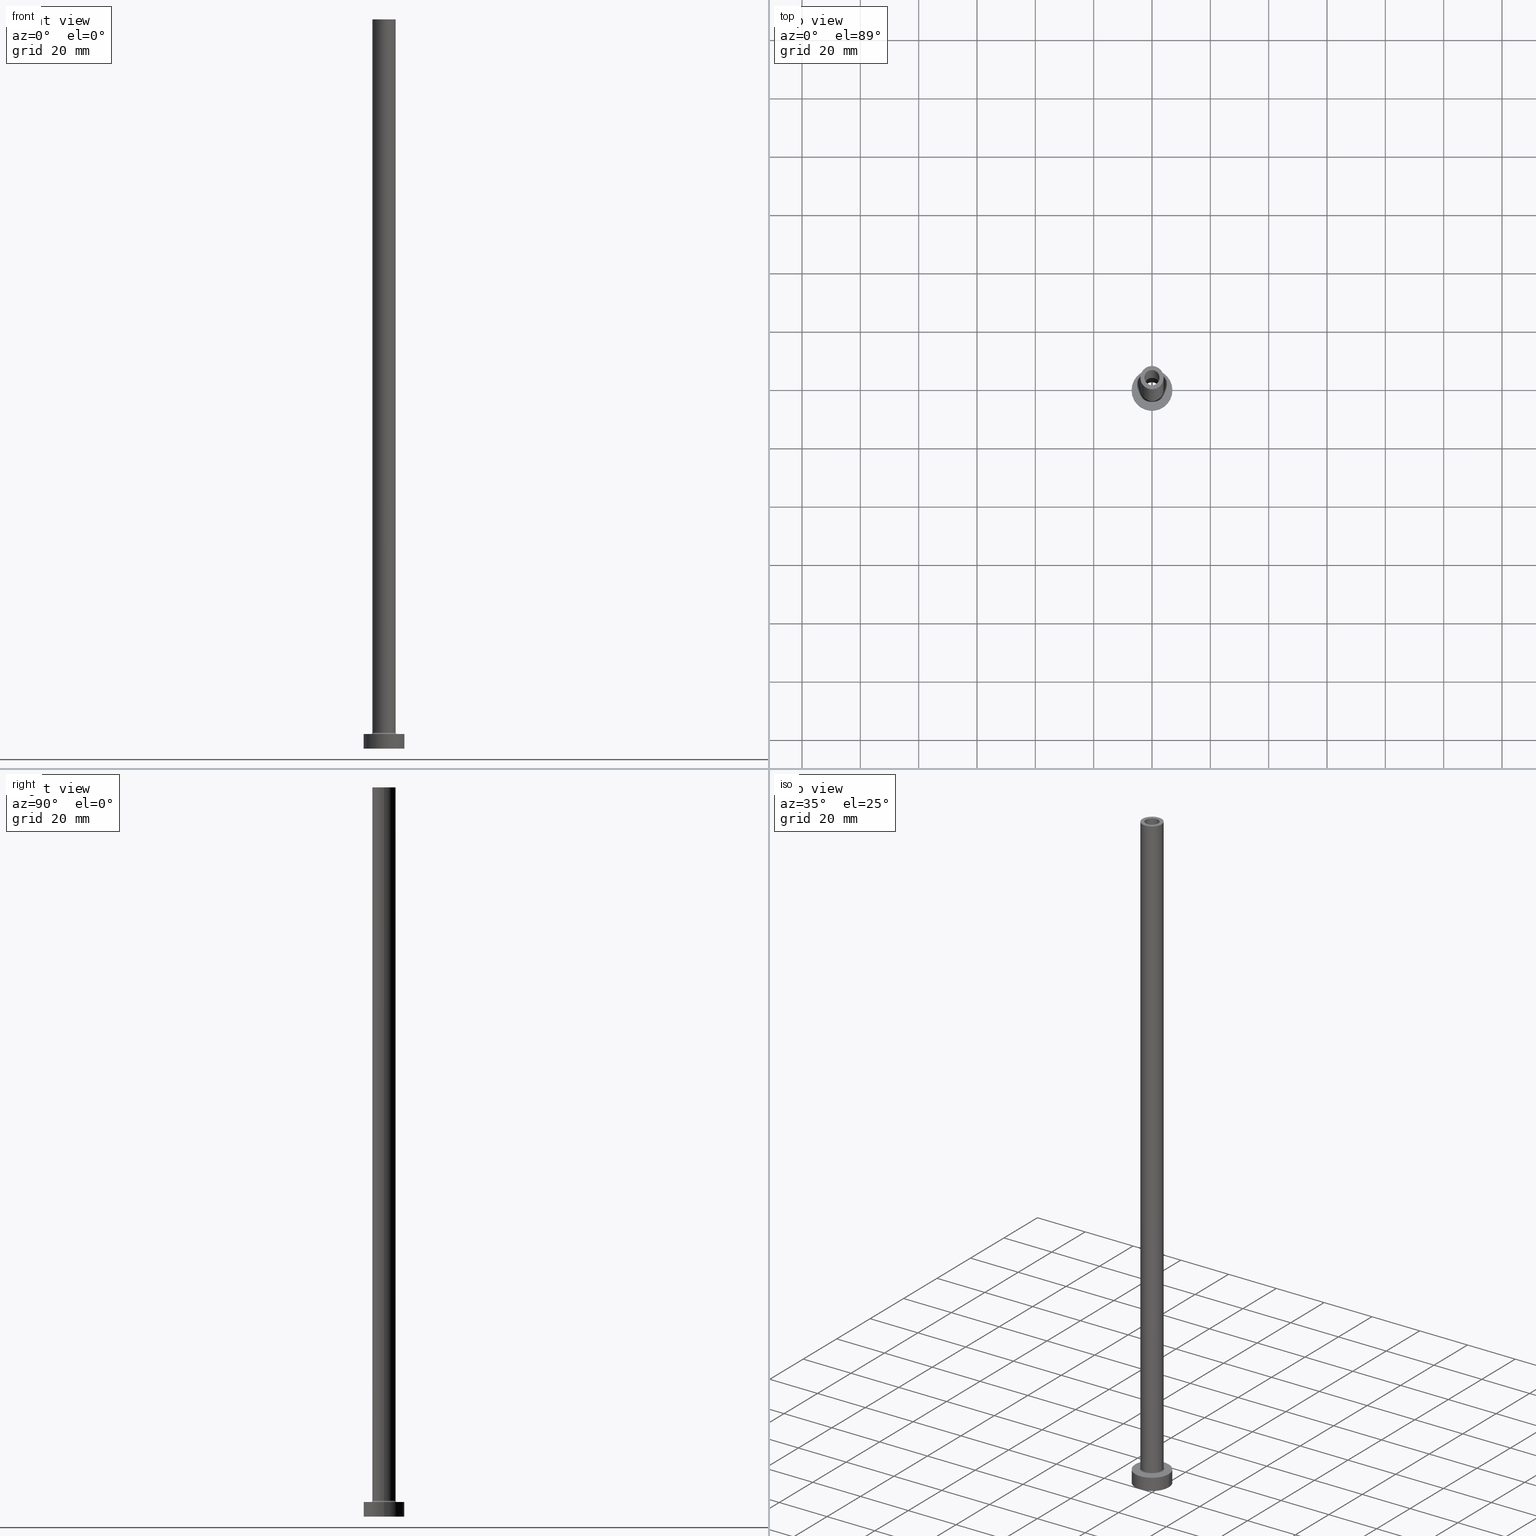
[diagram: canonical four-view strip — front | top / right | iso, engineering-drawing reading convention]
A machine part, canonical four-view strip (front | top / right | iso — engineering-drawing reading convention). The complete STEP part file that produces these views, byte-faithful:
ISO-10303-21;
HEADER;
FILE_DESCRIPTION (( 'STEP AP203' ),
    '1' );
FILE_NAME ('dae2.STEP',
    '2023-02-13T10:10:55',
    ( '' ),
    ( '' ),
    'SwSTEP 2.0',
    'SolidWorks 2019',
    '' );
FILE_SCHEMA (( 'CONFIG_CONTROL_DESIGN' ));
ENDSEC;

DATA;
#1 = DIRECTION ( 'NONE',  ( -1.000000000000000000, 0.000000000000000000, 0.000000000000000000 ) ) ;
#2 = DIRECTION ( 'NONE',  ( 0.000000000000000000, 0.000000000000000000, 1.000000000000000000 ) ) ;
#3 = CARTESIAN_POINT ( 'NONE',  ( 0.000000000000000000, 0.000000000000000000, 250.0000000000000000 ) ) ;
#4 = VERTEX_POINT ( 'NONE', #342 ) ;
#5 = EDGE_CURVE ( 'NONE', #294, #237, #119, .T. ) ;
#6 = CARTESIAN_POINT ( 'NONE',  ( -4.000000000000000000, 0.000000000000000000, 250.0000000000000000 ) ) ;
#7 = VERTEX_POINT ( 'NONE', #20 ) ;
#8 = CARTESIAN_POINT ( 'NONE',  ( 0.000000000000000000, 0.000000000000000000, 0.000000000000000000 ) ) ;
#9 = CARTESIAN_POINT ( 'NONE',  ( 0.000000000000000000, 0.000000000000000000, 5.000000000000000000 ) ) ;
#10 = FACE_OUTER_BOUND ( 'NONE', #397, .T. ) ;
#11 = EDGE_CURVE ( 'NONE', #257, #152, #392, .T. ) ;
#12 = CYLINDRICAL_SURFACE ( 'NONE', #439, 2.600000000000000089 ) ;
#13 = DIRECTION ( 'NONE',  ( 0.000000000000000000, 0.000000000000000000, 1.000000000000000000 ) ) ;
#14 = CARTESIAN_POINT ( 'NONE',  ( 0.000000000000000000, 0.000000000000000000, 250.0000000000000000 ) ) ;
#15 = CARTESIAN_POINT ( 'NONE',  ( 0.000000000000000000, 0.000000000000000000, 212.7781745930520287 ) ) ;
#16 = CC_DESIGN_DATE_AND_TIME_ASSIGNMENT ( #213, #179, ( #249 ) ) ;
#17 = ORIENTED_EDGE ( 'NONE', *, *, #381, .F. ) ;
#18 = APPROVAL_PERSON_ORGANIZATION ( #242, #444, #103 ) ;
#19 = CARTESIAN_POINT ( 'NONE',  ( -7.000000000000000000, 0.000000000000000000, 5.000000000000000000 ) ) ;
#20 = CARTESIAN_POINT ( 'NONE',  ( 2.750000000000000000, 3.367778697655221012E-16, 205.0000000000000284 ) ) ;
#21 = AXIS2_PLACEMENT_3D ( 'NONE', #279, #351, #155 ) ;
#22 = FACE_BOUND ( 'NONE', #133, .T. ) ;
#23 = PERSON_AND_ORGANIZATION ( #356, #283 ) ;
#24 = VERTEX_POINT ( 'NONE', #166 ) ;
#25 = DIRECTION ( 'NONE',  ( 0.000000000000000000, 0.000000000000000000, -1.000000000000000000 ) ) ;
#26 = AXIS2_PLACEMENT_3D ( 'NONE', #59, #200, #130 ) ;
#27 = ORIENTED_EDGE ( 'NONE', *, *, #429, .T. ) ;
#28 = EDGE_CURVE ( 'NONE', #45, #389, #208, .T. ) ;
#29 = CIRCLE ( 'NONE', #301, 2.600000000000000089 ) ;
#30 = CC_DESIGN_SECURITY_CLASSIFICATION ( #249, ( #364 ) ) ;
#31 = CARTESIAN_POINT ( 'NONE',  ( -4.500000000000000888, 5.510910596163089556E-16, 5.500000000000005329 ) ) ;
#32 = DIRECTION ( 'NONE',  ( -1.000000000000000000, 0.000000000000000000, 0.000000000000000000 ) ) ;
#33 = AXIS2_PLACEMENT_3D ( 'NONE', #171, #97, #417 ) ;
#34 = DIRECTION ( 'NONE',  ( 1.000000000000000000, 0.000000000000000000, 0.000000000000000000 ) ) ;
#35 = APPROVAL ( #153, 'NEUR�EN�' ) ;
#36 = CALENDAR_DATE ( 2023, 13, 2 ) ;
#37 = VERTEX_POINT ( 'NONE', #161 ) ;
#38 = LOCAL_TIME ( 11, 10, 55.00000000000000000, #432 ) ;
#39 = CARTESIAN_POINT ( 'NONE',  ( 0.000000000000000000, 0.000000000000000000, 0.000000000000000000 ) ) ;
#40 = EDGE_LOOP ( 'NONE', ( #173, #252 ) ) ;
#41 = CARTESIAN_POINT ( 'NONE',  ( 0.000000000000000000, 0.000000000000000000, 205.0000000000000284 ) ) ;
#42 = ADVANCED_FACE ( 'NONE', ( #58, #235 ), #239, .T. ) ;
#43 = ORIENTED_EDGE ( 'NONE', *, *, #241, .F. ) ;
#44 = DIRECTION ( 'NONE',  ( 0.000000000000000000, 0.000000000000000000, 1.000000000000000000 ) ) ;
#45 = VERTEX_POINT ( 'NONE', #275 ) ;
#46 = CARTESIAN_POINT ( 'NONE',  ( 7.000000000000000000, 8.572527594031473190E-16, 5.000000000000000000 ) ) ;
#47 = EDGE_LOOP ( 'NONE', ( #17, #157, #407, #109 ) ) ;
#48 = ADVANCED_FACE ( 'NONE', ( #314, #455 ), #198, .F. ) ;
#49 = DIRECTION ( 'NONE',  ( -0.000000000000000000, -0.000000000000000000, -1.000000000000000000 ) ) ;
#50 = AXIS2_PLACEMENT_3D ( 'NONE', #39, #216, #434 ) ;
#51 = APPLICATION_PROTOCOL_DEFINITION ( 'international standard', 'config_control_design', 1994, #180 ) ;
#52 = LOCAL_TIME ( 11, 10, 55.00000000000000000, #158 ) ;
#53 = VECTOR ( 'NONE', #456, 1000.000000000000000 ) ;
#54 = EDGE_LOOP ( 'NONE', ( #230, #234, #221, #371 ) ) ;
#55 = CIRCLE ( 'NONE', #128, 4.000000000000000000 ) ;
#56 = EDGE_CURVE ( 'NONE', #237, #45, #93, .T. ) ;
#57 =( NAMED_UNIT ( * ) SI_UNIT ( $, .STERADIAN. ) SOLID_ANGLE_UNIT ( ) );
#58 = FACE_BOUND ( 'NONE', #40, .T. ) ;
#59 = CARTESIAN_POINT ( 'NONE',  ( 0.000000000000000000, 0.000000000000000000, 5.000000000000000000 ) ) ;
#60 = ADVANCED_FACE ( 'NONE', ( #348 ), #318, .T. ) ;
#61 = VERTEX_POINT ( 'NONE', #280 ) ;
#62 = LINE ( 'NONE', #247, #53 ) ;
#63 = CARTESIAN_POINT ( 'NONE',  ( 0.000000000000000000, 0.000000000000000000, 250.0000000000000000 ) ) ;
#64 = VECTOR ( 'NONE', #67, 1000.000000000000000 ) ;
#65 = AXIS2_PLACEMENT_3D ( 'NONE', #411, #44, #80 ) ;
#66 = AXIS2_PLACEMENT_3D ( 'NONE', #311, #86, #89 ) ;
#67 = DIRECTION ( 'NONE',  ( -0.000000000000000000, -0.000000000000000000, -1.000000000000000000 ) ) ;
#68 = CARTESIAN_POINT ( 'NONE',  ( 2.750000000000000000, 3.367778697655221012E-16, 212.7781745930520287 ) ) ;
#69 = DIRECTION ( 'NONE',  ( 1.000000000000000000, 0.000000000000000000, 0.000000000000000000 ) ) ;
#70 = LOCAL_TIME ( 11, 10, 55.00000000000000000, #362 ) ;
#71 = DIRECTION ( 'NONE',  ( 1.000000000000000000, 0.000000000000000000, 0.000000000000000000 ) ) ;
#72 = AXIS2_PLACEMENT_3D ( 'NONE', #3, #430, #150 ) ;
#73 = DIRECTION ( 'NONE',  ( 1.000000000000000000, 0.000000000000000000, 0.000000000000000000 ) ) ;
#74 = EDGE_CURVE ( 'NONE', #228, #37, #306, .T. ) ;
#75 = ORIENTED_EDGE ( 'NONE', *, *, #281, .T. ) ;
#76 = CIRCLE ( 'NONE', #327, 4.500000000000000888 ) ;
#77 = ORIENTED_EDGE ( 'NONE', *, *, #28, .F. ) ;
#78 = VERTEX_POINT ( 'NONE', #99 ) ;
#79 = DIRECTION ( 'NONE',  ( 0.000000000000000000, 0.000000000000000000, 1.000000000000000000 ) ) ;
#80 = DIRECTION ( 'NONE',  ( 1.000000000000000000, 0.000000000000000000, 0.000000000000000000 ) ) ;
#81 = FACE_OUTER_BOUND ( 'NONE', #259, .T. ) ;
#82 = LOCAL_TIME ( 11, 10, 55.00000000000000000, #398 ) ;
#83 = DIRECTION ( 'NONE',  ( 0.000000000000000000, 0.000000000000000000, 1.000000000000000000 ) ) ;
#84 = LINE ( 'NONE', #379, #154 ) ;
#85 = CARTESIAN_POINT ( 'NONE',  ( 0.000000000000000000, 0.000000000000000000, 5.500000000000005329 ) ) ;
#86 = DIRECTION ( 'NONE',  ( 0.000000000000000000, 0.000000000000000000, 1.000000000000000000 ) ) ;
#87 =( NAMED_UNIT ( * ) PLANE_ANGLE_UNIT ( ) SI_UNIT ( $, .RADIAN. ) );
#88 = VECTOR ( 'NONE', #261, 1000.000000000000000 ) ;
#89 = DIRECTION ( 'NONE',  ( 1.000000000000000000, 0.000000000000000000, -0.000000000000000000 ) ) ;
#90 = CC_DESIGN_DATE_AND_TIME_ASSIGNMENT ( #214, #132, ( #433 ) ) ;
#91 = VECTOR ( 'NONE', #254, 1000.000000000000000 ) ;
#92 = EDGE_LOOP ( 'NONE', ( #296, #160, #305, #435 ) ) ;
#93 = LINE ( 'NONE', #424, #343 ) ;
#94 = EDGE_LOOP ( 'NONE', ( #188, #385, #324, #108 ) ) ;
#95 = PRODUCT_RELATED_PRODUCT_CATEGORY ( 'detail', '', ( #202 ) ) ;
#96 = CIRCLE ( 'NONE', #367, 7.000000000000000000 ) ;
#97 = DIRECTION ( 'NONE',  ( 0.000000000000000000, 0.000000000000000000, 1.000000000000000000 ) ) ;
#98 = CARTESIAN_POINT ( 'NONE',  ( 0.000000000000000000, 0.000000000000000000, 250.0000000000000000 ) ) ;
#99 = CARTESIAN_POINT ( 'NONE',  ( 2.600000000000000089, 3.184081677783117698E-16, 205.0000000000000284 ) ) ;
#100 = LINE ( 'NONE', #428, #357 ) ;
#101 = EDGE_LOOP ( 'NONE', ( #162, #437 ) ) ;
#102 = PERSON_AND_ORGANIZATION ( #356, #283 ) ;
#103 = APPROVAL_ROLE ( '' ) ;
#104 = CARTESIAN_POINT ( 'NONE',  ( 2.600000000000000089, 3.184081677783117698E-16, 250.0000000000000000 ) ) ;
#105 = ORIENTED_EDGE ( 'NONE', *, *, #11, .T. ) ;
#106 = ORIENTED_EDGE ( 'NONE', *, *, #309, .F. ) ;
#107 = EDGE_CURVE ( 'NONE', #37, #212, #285, .T. ) ;
#108 = ORIENTED_EDGE ( 'NONE', *, *, #56, .F. ) ;
#109 = ORIENTED_EDGE ( 'NONE', *, *, #309, .T. ) ;
#110 = CIRCLE ( 'NONE', #418, 2.600000000000000089 ) ;
#111 = EDGE_LOOP ( 'NONE', ( #363, #431, #274, #269 ) ) ;
#112 = AXIS2_PLACEMENT_3D ( 'NONE', #85, #380, #454 ) ;
#113 = SHAPE_DEFINITION_REPRESENTATION ( #168, #422 ) ;
#114 = VERTEX_POINT ( 'NONE', #286 ) ;
#115 = CARTESIAN_POINT ( 'NONE',  ( -2.750000000000000000, 0.000000000000000000, 212.7781745930520287 ) ) ;
#116 = DIRECTION ( 'NONE',  ( 1.000000000000000000, 0.000000000000000000, 0.000000000000000000 ) ) ;
#117 = FACE_OUTER_BOUND ( 'NONE', #315, .T. ) ;
#118 = ORIENTED_EDGE ( 'NONE', *, *, #421, .F. ) ;
#119 = CIRCLE ( 'NONE', #423, 4.000000000000000000 ) ;
#120 = CARTESIAN_POINT ( 'NONE',  ( 0.000000000000000000, 0.000000000000000000, 5.500000000000005329 ) ) ;
#121 = CC_DESIGN_PERSON_AND_ORGANIZATION_ASSIGNMENT ( #347, #319, ( #249 ) ) ;
#122 = CYLINDRICAL_SURFACE ( 'NONE', #146, 2.600000000000000089 ) ;
#123 = DIRECTION ( 'NONE',  ( 0.000000000000000000, 0.000000000000000000, 1.000000000000000000 ) ) ;
#124 = APPROVAL_PERSON_ORGANIZATION ( #320, #35, #195 ) ;
#125 = CIRCLE ( 'NONE', #395, 0.5000000000000004441 ) ;
#126 = ORIENTED_EDGE ( 'NONE', *, *, #350, .T. ) ;
#127 = PERSON_AND_ORGANIZATION_ROLE ( 'design_owner' ) ;
#128 = AXIS2_PLACEMENT_3D ( 'NONE', #443, #182, #73 ) ;
#129 = EDGE_CURVE ( 'NONE', #389, #45, #55, .T. ) ;
#130 = DIRECTION ( 'NONE',  ( -1.000000000000000000, 0.000000000000000000, 0.000000000000000000 ) ) ;
#131 = CC_DESIGN_APPROVAL ( #35, ( #433 ) ) ;
#132 = DATE_TIME_ROLE ( 'creation_date' ) ;
#133 = EDGE_LOOP ( 'NONE', ( #203, #344 ) ) ;
#134 = AXIS2_PLACEMENT_3D ( 'NONE', #9, #316, #396 ) ;
#135 = CLOSED_SHELL ( 'NONE', ( #272, #323, #317, #231, #60, #372, #156, #449, #388, #42, #265, #460, #48, #191 ) ) ;
#136 = AXIS2_PLACEMENT_3D ( 'NONE', #258, #408, #403 ) ;
#137 = DIRECTION ( 'NONE',  ( 1.224646799147353207E-16, 1.000000000000000000, -0.000000000000000000 ) ) ;
#138 = CC_DESIGN_PERSON_AND_ORGANIZATION_ASSIGNMENT ( #416, #127, ( #202 ) ) ;
#139 = DIRECTION ( 'NONE',  ( 0.000000000000000000, 0.000000000000000000, 1.000000000000000000 ) ) ;
#140 = CALENDAR_DATE ( 2023, 13, 2 ) ;
#141 = EDGE_CURVE ( 'NONE', #143, #61, #76, .T. ) ;
#142 = DIRECTION ( 'NONE',  ( 1.000000000000000000, 0.000000000000000000, 0.000000000000000000 ) ) ;
#143 = VERTEX_POINT ( 'NONE', #299 ) ;
#144 = ORIENTED_EDGE ( 'NONE', *, *, #74, .F. ) ;
#145 = CARTESIAN_POINT ( 'NONE',  ( 0.000000000000000000, 0.000000000000000000, 5.000000000000000000 ) ) ;
#146 = AXIS2_PLACEMENT_3D ( 'NONE', #98, #25, #244 ) ;
#147 = CC_DESIGN_PERSON_AND_ORGANIZATION_ASSIGNMENT ( #360, #330, ( #433 ) ) ;
#148 = AXIS2_PLACEMENT_3D ( 'NONE', #341, #13, #412 ) ;
#149 = DATE_AND_TIME ( #194, #82 ) ;
#150 = DIRECTION ( 'NONE',  ( -1.000000000000000000, 0.000000000000000000, 0.000000000000000000 ) ) ;
#151 = EDGE_LOOP ( 'NONE', ( #106, #186 ) ) ;
#152 = VERTEX_POINT ( 'NONE', #223 ) ;
#153 = APPROVAL_STATUS ( 'not_yet_approved' ) ;
#154 = VECTOR ( 'NONE', #49, 1000.000000000000000 ) ;
#155 = DIRECTION ( 'NONE',  ( 1.000000000000000000, 0.000000000000000000, 0.000000000000000000 ) ) ;
#156 = ADVANCED_FACE ( 'NONE', ( #264, #304 ), #267, .T. ) ;
#157 = ORIENTED_EDGE ( 'NONE', *, *, #174, .F. ) ;
#158 = COORDINATED_UNIVERSAL_TIME_OFFSET ( 1, 0, .AHEAD. ) ;
#159 = MANIFOLD_SOLID_BREP ( 'Odebrat vysunut�m4', #135 ) ;
#160 = ORIENTED_EDGE ( 'NONE', *, *, #381, .T. ) ;
#161 = CARTESIAN_POINT ( 'NONE',  ( -2.750000000000000000, 0.000000000000000000, 0.000000000000000000 ) ) ;
#162 = ORIENTED_EDGE ( 'NONE', *, *, #393, .F. ) ;
#163 = DIRECTION ( 'NONE',  ( -0.000000000000000000, -0.000000000000000000, -1.000000000000000000 ) ) ;
#164 = VERTEX_POINT ( 'NONE', #46 ) ;
#165 = CARTESIAN_POINT ( 'NONE',  ( 0.000000000000000000, 0.000000000000000000, 250.0000000000000000 ) ) ;
#166 = CARTESIAN_POINT ( 'NONE',  ( -2.600000000000000089, 0.000000000000000000, 205.0000000000000284 ) ) ;
#167 = ORIENTED_EDGE ( 'NONE', *, *, #107, .T. ) ;
#168 = PRODUCT_DEFINITION_SHAPE ( 'NONE', 'NONE',  #433 ) ;
#169 = EDGE_CURVE ( 'NONE', #78, #24, #29, .T. ) ;
#170 = CARTESIAN_POINT ( 'NONE',  ( 2.750000000000000000, 3.367778697655221012E-16, 0.000000000000000000 ) ) ;
#171 = CARTESIAN_POINT ( 'NONE',  ( 0.000000000000000000, 0.000000000000000000, 205.0000000000000284 ) ) ;
#172 = DIRECTION ( 'NONE',  ( -1.000000000000000000, 0.000000000000000000, 0.000000000000000000 ) ) ;
#173 = ORIENTED_EDGE ( 'NONE', *, *, #281, .F. ) ;
#174 = EDGE_CURVE ( 'NONE', #373, #164, #448, .T. ) ;
#175 = DIRECTION ( 'NONE',  ( 0.000000000000000000, 0.000000000000000000, -1.000000000000000000 ) ) ;
#176 = AXIS2_PLACEMENT_3D ( 'NONE', #199, #415, #458 ) ;
#177 = FACE_OUTER_BOUND ( 'NONE', #94, .T. ) ;
#178 = DIRECTION ( 'NONE',  ( 0.000000000000000000, 0.000000000000000000, 1.000000000000000000 ) ) ;
#179 = DATE_TIME_ROLE ( 'classification_date' ) ;
#180 = APPLICATION_CONTEXT ( 'configuration controlled 3d designs of mechanical parts and assemblies' ) ;
#181 = CYLINDRICAL_SURFACE ( 'NONE', #276, 2.750000000000000000 ) ;
#182 = DIRECTION ( 'NONE',  ( 0.000000000000000000, 0.000000000000000000, 1.000000000000000000 ) ) ;
#183 = CIRCLE ( 'NONE', #134, 4.500000000000000888 ) ;
#184 =( GEOMETRIC_REPRESENTATION_CONTEXT ( 3 ) GLOBAL_UNCERTAINTY_ASSIGNED_CONTEXT ( ( #238 ) ) GLOBAL_UNIT_ASSIGNED_CONTEXT ( ( #451, #87, #57 ) ) REPRESENTATION_CONTEXT ( 'NONE', 'WORKASPACE' ) );
#185 = DIRECTION ( 'NONE',  ( 1.000000000000000000, 0.000000000000000000, 0.000000000000000000 ) ) ;
#186 = ORIENTED_EDGE ( 'NONE', *, *, #297, .F. ) ;
#187 = AXIS2_PLACEMENT_3D ( 'NONE', #8, #204, #245 ) ;
#188 = ORIENTED_EDGE ( 'NONE', *, *, #5, .F. ) ;
#189 = ORIENTED_EDGE ( 'NONE', *, *, #141, .F. ) ;
#190 = ORIENTED_EDGE ( 'NONE', *, *, #241, .T. ) ;
#191 = ADVANCED_FACE ( 'NONE', ( #10 ), #12, .F. ) ;
#192 = AXIS2_PLACEMENT_3D ( 'NONE', #63, #331, #1 ) ;
#193 = LINE ( 'NONE', #19, #64 ) ;
#194 = CALENDAR_DATE ( 2023, 13, 2 ) ;
#195 = APPROVAL_ROLE ( '' ) ;
#196 = AXIS2_PLACEMENT_3D ( 'NONE', #427, #2, #34 ) ;
#197 = SECURITY_CLASSIFICATION_LEVEL ( 'unclassified' ) ;
#198 = PLANE ( 'NONE',  #66 ) ;
#199 = CARTESIAN_POINT ( 'NONE',  ( 0.000000000000000000, 0.000000000000000000, 250.0000000000000000 ) ) ;
#200 = DIRECTION ( 'NONE',  ( -0.000000000000000000, -0.000000000000000000, -1.000000000000000000 ) ) ;
#201 = DIRECTION ( 'NONE',  ( -1.000000000000000000, 0.000000000000000000, 0.000000000000000000 ) ) ;
#202 = PRODUCT ( 'dae2', 'dae2', '', ( #295 ) ) ;
#203 = ORIENTED_EDGE ( 'NONE', *, *, #107, .F. ) ;
#204 = DIRECTION ( 'NONE',  ( -0.000000000000000000, -0.000000000000000000, -1.000000000000000000 ) ) ;
#205 = EDGE_CURVE ( 'NONE', #7, #212, #256, .T. ) ;
#206 = TOROIDAL_SURFACE ( 'NONE', #302, 4.500000000000000888, 0.5000000000000000000 ) ;
#207 = AXIS2_PLACEMENT_3D ( 'NONE', #387, #349, #201 ) ;
#208 = CIRCLE ( 'NONE', #278, 4.000000000000000000 ) ;
#209 = CARTESIAN_POINT ( 'NONE',  ( -7.000000000000000000, 0.000000000000000000, 5.000000000000000000 ) ) ;
#210 = DIRECTION ( 'NONE',  ( 0.000000000000000000, 0.000000000000000000, 1.000000000000000000 ) ) ;
#211 = EDGE_CURVE ( 'NONE', #212, #37, #441, .T. ) ;
#212 = VERTEX_POINT ( 'NONE', #170 ) ;
#213 = DATE_AND_TIME ( #369, #404 ) ;
#214 = DATE_AND_TIME ( #140, #38 ) ;
#215 = CYLINDRICAL_SURFACE ( 'NONE', #390, 7.000000000000000000 ) ;
#216 = DIRECTION ( 'NONE',  ( -0.000000000000000000, -0.000000000000000000, -1.000000000000000000 ) ) ;
#217 = ORIENTED_EDGE ( 'NONE', *, *, #365, .F. ) ;
#218 = CIRCLE ( 'NONE', #339, 0.5000000000000004441 ) ;
#219 = CARTESIAN_POINT ( 'NONE',  ( 0.000000000000000000, 0.000000000000000000, 5.500000000000005329 ) ) ;
#220 = ORIENTED_EDGE ( 'NONE', *, *, #169, .F. ) ;
#221 = ORIENTED_EDGE ( 'NONE', *, *, #56, .T. ) ;
#222 = ORIENTED_EDGE ( 'NONE', *, *, #205, .T. ) ;
#223 = CARTESIAN_POINT ( 'NONE',  ( -2.600000000000000089, 0.000000000000000000, 250.0000000000000000 ) ) ;
#224 = ORIENTED_EDGE ( 'NONE', *, *, #211, .T. ) ;
#225 = EDGE_CURVE ( 'NONE', #237, #294, #354, .T. ) ;
#226 = ORIENTED_EDGE ( 'NONE', *, *, #225, .T. ) ;
#227 = CARTESIAN_POINT ( 'NONE',  ( 0.000000000000000000, 0.000000000000000000, 205.0000000000000284 ) ) ;
#228 = VERTEX_POINT ( 'NONE', #361 ) ;
#229 = PLANE ( 'NONE',  #148 ) ;
#230 = ORIENTED_EDGE ( 'NONE', *, *, #326, .F. ) ;
#231 = ADVANCED_FACE ( 'NONE', ( #177 ), #336, .T. ) ;
#232 = AXIS2_PLACEMENT_3D ( 'NONE', #353, #139, #248 ) ;
#233 = DIRECTION ( 'NONE',  ( 1.000000000000000000, 0.000000000000000000, 0.000000000000000000 ) ) ;
#234 = ORIENTED_EDGE ( 'NONE', *, *, #225, .F. ) ;
#235 = FACE_OUTER_BOUND ( 'NONE', #374, .T. ) ;
#236 = CARTESIAN_POINT ( 'NONE',  ( 2.600000000000000089, 3.184081677783117698E-16, 250.0000000000000000 ) ) ;
#237 = VERTEX_POINT ( 'NONE', #6 ) ;
#238 = UNCERTAINTY_MEASURE_WITH_UNIT (LENGTH_MEASURE( 1.000000000000000082E-05 ), #451, 'distance_accuracy_value', 'NONE');
#239 = PLANE ( 'NONE',  #176 ) ;
#240 = AXIS2_PLACEMENT_3D ( 'NONE', #289, #210, #69 ) ;
#241 = EDGE_CURVE ( 'NONE', #257, #78, #394, .T. ) ;
#242 = PERSON_AND_ORGANIZATION ( #356, #283 ) ;
#243 = DIRECTION ( 'NONE',  ( -0.000000000000000000, -0.000000000000000000, -1.000000000000000000 ) ) ;
#244 = DIRECTION ( 'NONE',  ( -1.000000000000000000, 0.000000000000000000, 0.000000000000000000 ) ) ;
#245 = DIRECTION ( 'NONE',  ( 1.000000000000000000, 0.000000000000000000, 0.000000000000000000 ) ) ;
#246 = APPROVAL_STATUS ( 'not_yet_approved' ) ;
#247 = CARTESIAN_POINT ( 'NONE',  ( -2.600000000000000089, 0.000000000000000000, 250.0000000000000000 ) ) ;
#248 = DIRECTION ( 'NONE',  ( 1.000000000000000000, 0.000000000000000000, 0.000000000000000000 ) ) ;
#249 = SECURITY_CLASSIFICATION ( '', '', #197 ) ;
#250 = APPLICATION_CONTEXT ( 'configuration controlled 3d designs of mechanical parts and assemblies' ) ;
#251 = CC_DESIGN_PERSON_AND_ORGANIZATION_ASSIGNMENT ( #378, #386, ( #364 ) ) ;
#252 = ORIENTED_EDGE ( 'NONE', *, *, #11, .F. ) ;
#253 = DIRECTION ( 'NONE',  ( -1.000000000000000000, 1.224646799147351482E-16, 0.000000000000000000 ) ) ;
#254 = DIRECTION ( 'NONE',  ( 0.000000000000000000, 0.000000000000000000, -1.000000000000000000 ) ) ;
#255 = ORIENTED_EDGE ( 'NONE', *, *, #400, .T. ) ;
#256 = LINE ( 'NONE', #68, #88 ) ;
#257 = VERTEX_POINT ( 'NONE', #236 ) ;
#258 = CARTESIAN_POINT ( 'NONE',  ( 0.000000000000000000, 0.000000000000000000, 5.000000000000000000 ) ) ;
#259 = EDGE_LOOP ( 'NONE', ( #401, #332, #420, #167 ) ) ;
#260 = AXIS2_PLACEMENT_3D ( 'NONE', #227, #375, #142 ) ;
#261 = DIRECTION ( 'NONE',  ( 0.000000000000000000, 0.000000000000000000, -1.000000000000000000 ) ) ;
#262 = DIRECTION ( 'NONE',  ( 0.000000000000000000, 0.000000000000000000, 1.000000000000000000 ) ) ;
#263 = EDGE_LOOP ( 'NONE', ( #409, #255 ) ) ;
#264 = FACE_BOUND ( 'NONE', #263, .T. ) ;
#265 = ADVANCED_FACE ( 'NONE', ( #413 ), #325, .F. ) ;
#266 = EDGE_LOOP ( 'NONE', ( #333, #126 ) ) ;
#267 = PLANE ( 'NONE',  #136 ) ;
#268 = FACE_OUTER_BOUND ( 'NONE', #151, .T. ) ;
#269 = ORIENTED_EDGE ( 'NONE', *, *, #400, .F. ) ;
#270 = CARTESIAN_POINT ( 'NONE',  ( 4.000000000000000000, 4.898587196589412829E-16, 5.500000000000005329 ) ) ;
#271 = CC_DESIGN_APPROVAL ( #345, ( #249 ) ) ;
#272 = ADVANCED_FACE ( 'NONE', ( #117 ), #122, .F. ) ;
#273 = ORIENTED_EDGE ( 'NONE', *, *, #169, .T. ) ;
#274 = ORIENTED_EDGE ( 'NONE', *, *, #365, .T. ) ;
#275 = CARTESIAN_POINT ( 'NONE',  ( -4.000000000000000000, 0.000000000000000000, 5.500000000000005329 ) ) ;
#276 = AXIS2_PLACEMENT_3D ( 'NONE', #15, #303, #446 ) ;
#277 = DIRECTION ( 'NONE',  ( 0.000000000000000000, 0.000000000000000000, 1.000000000000000000 ) ) ;
#278 = AXIS2_PLACEMENT_3D ( 'NONE', #120, #123, #322 ) ;
#279 = CARTESIAN_POINT ( 'NONE',  ( 0.000000000000000000, 0.000000000000000000, 250.0000000000000000 ) ) ;
#280 = CARTESIAN_POINT ( 'NONE',  ( -4.500000000000000888, 5.510910596163088569E-16, 5.000000000000002665 ) ) ;
#281 = EDGE_CURVE ( 'NONE', #152, #257, #110, .T. ) ;
#282 = DIRECTION ( 'NONE',  ( 0.000000000000000000, 0.000000000000000000, -1.000000000000000000 ) ) ;
#283 = ORGANIZATION ( 'NEUR�EN�', 'NEUR�EN�', '' ) ;
#284 = DESIGN_CONTEXT ( 'detailed design', #180, 'design' ) ;
#285 = CIRCLE ( 'NONE', #187, 2.750000000000000000 ) ;
#286 = CARTESIAN_POINT ( 'NONE',  ( -7.000000000000000000, 0.000000000000000000, 0.000000000000000000 ) ) ;
#287 = CC_DESIGN_PERSON_AND_ORGANIZATION_ASSIGNMENT ( #23, #452, ( #364 ) ) ;
#288 = CYLINDRICAL_SURFACE ( 'NONE', #72, 4.000000000000000000 ) ;
#289 = CARTESIAN_POINT ( 'NONE',  ( 0.000000000000000000, 0.000000000000000000, 250.0000000000000000 ) ) ;
#290 = EDGE_LOOP ( 'NONE', ( #27, #273 ) ) ;
#291 = APPROVAL_STATUS ( 'not_yet_approved' ) ;
#292 = CARTESIAN_POINT ( 'NONE',  ( 4.500000000000000888, 0.000000000000000000, 5.500000000000005329 ) ) ;
#293 = DATE_AND_TIME ( #36, #70 ) ;
#294 = VERTEX_POINT ( 'NONE', #457 ) ;
#295 = MECHANICAL_CONTEXT ( 'NONE', #250, 'mechanical' ) ;
#296 = ORIENTED_EDGE ( 'NONE', *, *, #350, .F. ) ;
#297 = EDGE_CURVE ( 'NONE', #4, #114, #340, .T. ) ;
#298 = DIRECTION ( 'NONE',  ( 1.000000000000000000, 0.000000000000000000, 0.000000000000000000 ) ) ;
#299 = CARTESIAN_POINT ( 'NONE',  ( 4.500000000000000888, 0.000000000000000000, 5.000000000000002665 ) ) ;
#300 = EDGE_LOOP ( 'NONE', ( #459, #222, #224, #144 ) ) ;
#301 = AXIS2_PLACEMENT_3D ( 'NONE', #41, #178, #185 ) ;
#302 = AXIS2_PLACEMENT_3D ( 'NONE', #219, #79, #116 ) ;
#303 = DIRECTION ( 'NONE',  ( 0.000000000000000000, 0.000000000000000000, -1.000000000000000000 ) ) ;
#304 = FACE_OUTER_BOUND ( 'NONE', #266, .T. ) ;
#305 = ORIENTED_EDGE ( 'NONE', *, *, #297, .T. ) ;
#306 = LINE ( 'NONE', #115, #312 ) ;
#307 = DIRECTION ( 'NONE',  ( 0.000000000000000000, 0.000000000000000000, 1.000000000000000000 ) ) ;
#308 = CARTESIAN_POINT ( 'NONE',  ( 0.000000000000000000, 0.000000000000000000, 0.000000000000000000 ) ) ;
#309 = EDGE_CURVE ( 'NONE', #114, #4, #96, .T. ) ;
#310 = CC_DESIGN_APPROVAL ( #444, ( #364 ) ) ;
#311 = CARTESIAN_POINT ( 'NONE',  ( 0.000000000000000000, 0.000000000000000000, 205.0000000000000284 ) ) ;
#312 = VECTOR ( 'NONE', #175, 1000.000000000000000 ) ;
#313 = CALENDAR_DATE ( 2023, 13, 2 ) ;
#314 = FACE_BOUND ( 'NONE', #290, .T. ) ;
#315 = EDGE_LOOP ( 'NONE', ( #75, #190, #377, #118 ) ) ;
#316 = DIRECTION ( 'NONE',  ( -0.000000000000000000, -0.000000000000000000, -1.000000000000000000 ) ) ;
#317 = ADVANCED_FACE ( 'NONE', ( #406 ), #206, .F. ) ;
#318 = CYLINDRICAL_SURFACE ( 'NONE', #26, 7.000000000000000000 ) ;
#319 = PERSON_AND_ORGANIZATION_ROLE ( 'classification_officer' ) ;
#320 = PERSON_AND_ORGANIZATION ( #356, #283 ) ;
#321 = DIRECTION ( 'NONE',  ( 0.000000000000000000, 0.000000000000000000, 1.000000000000000000 ) ) ;
#322 = DIRECTION ( 'NONE',  ( 1.000000000000000000, 0.000000000000000000, 0.000000000000000000 ) ) ;
#323 = ADVANCED_FACE ( 'NONE', ( #370 ), #181, .F. ) ;
#324 = ORIENTED_EDGE ( 'NONE', *, *, #129, .T. ) ;
#325 = TOROIDAL_SURFACE ( 'NONE', #112, 4.500000000000000888, 0.5000000000000000000 ) ;
#326 = EDGE_CURVE ( 'NONE', #294, #389, #84, .T. ) ;
#327 = AXIS2_PLACEMENT_3D ( 'NONE', #145, #337, #368 ) ;
#328 = APPROVAL_ROLE ( '' ) ;
#329 = FACE_OUTER_BOUND ( 'NONE', #54, .T. ) ;
#330 = PERSON_AND_ORGANIZATION_ROLE ( 'creator' ) ;
#331 = DIRECTION ( 'NONE',  ( -0.000000000000000000, -0.000000000000000000, -1.000000000000000000 ) ) ;
#332 = ORIENTED_EDGE ( 'NONE', *, *, #414, .T. ) ;
#333 = ORIENTED_EDGE ( 'NONE', *, *, #174, .T. ) ;
#334 = APPLICATION_PROTOCOL_DEFINITION ( 'international standard', 'config_control_design', 1994, #250 ) ;
#335 = EDGE_CURVE ( 'NONE', #373, #114, #193, .T. ) ;
#336 = CYLINDRICAL_SURFACE ( 'NONE', #192, 4.000000000000000000 ) ;
#337 = DIRECTION ( 'NONE',  ( -0.000000000000000000, -0.000000000000000000, -1.000000000000000000 ) ) ;
#338 = CARTESIAN_POINT ( 'NONE',  ( 0.000000000000000000, 0.000000000000000000, 250.0000000000000000 ) ) ;
#339 = AXIS2_PLACEMENT_3D ( 'NONE', #31, #137, #253 ) ;
#340 = CIRCLE ( 'NONE', #382, 7.000000000000000000 ) ;
#341 = CARTESIAN_POINT ( 'NONE',  ( 0.000000000000000000, 0.000000000000000000, 0.000000000000000000 ) ) ;
#342 = CARTESIAN_POINT ( 'NONE',  ( 7.000000000000000000, 8.572527594031473190E-16, 0.000000000000000000 ) ) ;
#343 = VECTOR ( 'NONE', #163, 1000.000000000000000 ) ;
#344 = ORIENTED_EDGE ( 'NONE', *, *, #211, .F. ) ;
#345 = APPROVAL ( #246, 'NEUR�EN�' ) ;
#346 = APPROVAL_DATE_TIME ( #384, #35 ) ;
#347 = PERSON_AND_ORGANIZATION ( #356, #283 ) ;
#348 = FACE_OUTER_BOUND ( 'NONE', #92, .T. ) ;
#349 = DIRECTION ( 'NONE',  ( 0.000000000000000000, 0.000000000000000000, -1.000000000000000000 ) ) ;
#350 = EDGE_CURVE ( 'NONE', #164, #373, #426, .T. ) ;
#351 = DIRECTION ( 'NONE',  ( 0.000000000000000000, 0.000000000000000000, 1.000000000000000000 ) ) ;
#352 = DIRECTION ( 'NONE',  ( 0.000000000000000000, -1.000000000000000000, 0.000000000000000000 ) ) ;
#353 = CARTESIAN_POINT ( 'NONE',  ( 0.000000000000000000, 0.000000000000000000, 5.000000000000000000 ) ) ;
#354 = CIRCLE ( 'NONE', #240, 4.000000000000000000 ) ;
#355 = DIRECTION ( 'NONE',  ( 1.000000000000000000, 0.000000000000000000, 0.000000000000000000 ) ) ;
#356 = PERSON ( 'NEUR�EN�', 'NEUR�EN�', 'NEUR�EN�', ('NEUR�EN�'), ('NEUR�EN�'), ('NEUR�EN�') ) ;
#357 = VECTOR ( 'NONE', #243, 1000.000000000000000 ) ;
#358 = EDGE_CURVE ( 'NONE', #45, #61, #218, .T. ) ;
#359 = CARTESIAN_POINT ( 'NONE',  ( 0.000000000000000000, 0.000000000000000000, 5.000000000000000000 ) ) ;
#360 = PERSON_AND_ORGANIZATION ( #356, #283 ) ;
#361 = CARTESIAN_POINT ( 'NONE',  ( -2.750000000000000000, 0.000000000000000000, 205.0000000000000284 ) ) ;
#362 = COORDINATED_UNIVERSAL_TIME_OFFSET ( 1, 0, .AHEAD. ) ;
#363 = ORIENTED_EDGE ( 'NONE', *, *, #358, .F. ) ;
#364 = PRODUCT_DEFINITION_FORMATION_WITH_SPECIFIED_SOURCE ( 'LIBOVOLN�', '', #202, .NOT_KNOWN. ) ;
#365 = EDGE_CURVE ( 'NONE', #389, #143, #125, .T. ) ;
#366 = DIRECTION ( 'NONE',  ( 1.000000000000000000, 0.000000000000000000, 0.000000000000000000 ) ) ;
#367 = AXIS2_PLACEMENT_3D ( 'NONE', #376, #262, #71 ) ;
#368 = DIRECTION ( 'NONE',  ( 1.000000000000000000, 0.000000000000000000, 0.000000000000000000 ) ) ;
#369 = CALENDAR_DATE ( 2023, 13, 2 ) ;
#370 = FACE_OUTER_BOUND ( 'NONE', #300, .T. ) ;
#371 = ORIENTED_EDGE ( 'NONE', *, *, #28, .T. ) ;
#372 = ADVANCED_FACE ( 'NONE', ( #399 ), #215, .T. ) ;
#373 = VERTEX_POINT ( 'NONE', #209 ) ;
#374 = EDGE_LOOP ( 'NONE', ( #226, #425 ) ) ;
#375 = DIRECTION ( 'NONE',  ( 0.000000000000000000, 0.000000000000000000, 1.000000000000000000 ) ) ;
#376 = CARTESIAN_POINT ( 'NONE',  ( 0.000000000000000000, 0.000000000000000000, 0.000000000000000000 ) ) ;
#377 = ORIENTED_EDGE ( 'NONE', *, *, #429, .F. ) ;
#378 = PERSON_AND_ORGANIZATION ( #356, #283 ) ;
#379 = CARTESIAN_POINT ( 'NONE',  ( 4.000000000000000000, 4.898587196589412829E-16, 250.0000000000000000 ) ) ;
#380 = DIRECTION ( 'NONE',  ( 0.000000000000000000, 0.000000000000000000, 1.000000000000000000 ) ) ;
#381 = EDGE_CURVE ( 'NONE', #164, #4, #100, .T. ) ;
#382 = AXIS2_PLACEMENT_3D ( 'NONE', #308, #307, #298 ) ;
#383 = CIRCLE ( 'NONE', #33, 2.600000000000000089 ) ;
#384 = DATE_AND_TIME ( #313, #52 ) ;
#385 = ORIENTED_EDGE ( 'NONE', *, *, #326, .T. ) ;
#386 = PERSON_AND_ORGANIZATION_ROLE ( 'creator' ) ;
#387 = CARTESIAN_POINT ( 'NONE',  ( 0.000000000000000000, 0.000000000000000000, 212.7781745930520287 ) ) ;
#388 = ADVANCED_FACE ( 'NONE', ( #329 ), #288, .T. ) ;
#389 = VERTEX_POINT ( 'NONE', #270 ) ;
#390 = AXIS2_PLACEMENT_3D ( 'NONE', #359, #391, #172 ) ;
#391 = DIRECTION ( 'NONE',  ( -0.000000000000000000, -0.000000000000000000, -1.000000000000000000 ) ) ;
#392 = CIRCLE ( 'NONE', #21, 2.600000000000000089 ) ;
#393 = EDGE_CURVE ( 'NONE', #228, #7, #461, .T. ) ;
#394 = LINE ( 'NONE', #104, #91 ) ;
#395 = AXIS2_PLACEMENT_3D ( 'NONE', #292, #352, #282 ) ;
#396 = DIRECTION ( 'NONE',  ( 1.000000000000000000, 0.000000000000000000, 0.000000000000000000 ) ) ;
#397 = EDGE_LOOP ( 'NONE', ( #43, #105, #410, #220 ) ) ;
#398 = COORDINATED_UNIVERSAL_TIME_OFFSET ( 1, 0, .AHEAD. ) ;
#399 = FACE_OUTER_BOUND ( 'NONE', #47, .T. ) ;
#400 = EDGE_CURVE ( 'NONE', #61, #143, #183, .T. ) ;
#401 = ORIENTED_EDGE ( 'NONE', *, *, #205, .F. ) ;
#402 = APPROVAL_DATE_TIME ( #293, #444 ) ;
#403 = DIRECTION ( 'NONE',  ( 1.000000000000000000, 0.000000000000000000, -0.000000000000000000 ) ) ;
#404 = LOCAL_TIME ( 11, 10, 55.00000000000000000, #436 ) ;
#405 = CIRCLE ( 'NONE', #196, 2.750000000000000000 ) ;
#406 = FACE_OUTER_BOUND ( 'NONE', #442, .T. ) ;
#407 = ORIENTED_EDGE ( 'NONE', *, *, #335, .T. ) ;
#408 = DIRECTION ( 'NONE',  ( 0.000000000000000000, 0.000000000000000000, 1.000000000000000000 ) ) ;
#409 = ORIENTED_EDGE ( 'NONE', *, *, #141, .T. ) ;
#410 = ORIENTED_EDGE ( 'NONE', *, *, #421, .T. ) ;
#411 = CARTESIAN_POINT ( 'NONE',  ( 0.000000000000000000, 0.000000000000000000, 5.000000000000000000 ) ) ;
#412 = DIRECTION ( 'NONE',  ( 1.000000000000000000, 0.000000000000000000, -0.000000000000000000 ) ) ;
#413 = FACE_OUTER_BOUND ( 'NONE', #111, .T. ) ;
#414 = EDGE_CURVE ( 'NONE', #7, #228, #405, .T. ) ;
#415 = DIRECTION ( 'NONE',  ( 0.000000000000000000, 0.000000000000000000, 1.000000000000000000 ) ) ;
#416 = PERSON_AND_ORGANIZATION ( #356, #283 ) ;
#417 = DIRECTION ( 'NONE',  ( 1.000000000000000000, 0.000000000000000000, 0.000000000000000000 ) ) ;
#418 = AXIS2_PLACEMENT_3D ( 'NONE', #165, #321, #355 ) ;
#419 = APPROVAL_PERSON_ORGANIZATION ( #102, #345, #328 ) ;
#420 = ORIENTED_EDGE ( 'NONE', *, *, #74, .T. ) ;
#421 = EDGE_CURVE ( 'NONE', #152, #24, #62, .T. ) ;
#422 = ADVANCED_BREP_SHAPE_REPRESENTATION ( 'dae2', ( #159, #447 ), #184 ) ;
#423 = AXIS2_PLACEMENT_3D ( 'NONE', #14, #277, #233 ) ;
#424 = CARTESIAN_POINT ( 'NONE',  ( -4.000000000000000000, 0.000000000000000000, 250.0000000000000000 ) ) ;
#425 = ORIENTED_EDGE ( 'NONE', *, *, #5, .T. ) ;
#426 = CIRCLE ( 'NONE', #232, 7.000000000000000000 ) ;
#427 = CARTESIAN_POINT ( 'NONE',  ( 0.000000000000000000, 0.000000000000000000, 205.0000000000000284 ) ) ;
#428 = CARTESIAN_POINT ( 'NONE',  ( 7.000000000000000000, 8.572527594031473190E-16, 5.000000000000000000 ) ) ;
#429 = EDGE_CURVE ( 'NONE', #24, #78, #383, .T. ) ;
#430 = DIRECTION ( 'NONE',  ( -0.000000000000000000, -0.000000000000000000, -1.000000000000000000 ) ) ;
#431 = ORIENTED_EDGE ( 'NONE', *, *, #129, .F. ) ;
#432 = COORDINATED_UNIVERSAL_TIME_OFFSET ( 1, 0, .AHEAD. ) ;
#433 = PRODUCT_DEFINITION ( 'NEZN�M�', '', #364, #284 ) ;
#434 = DIRECTION ( 'NONE',  ( 1.000000000000000000, 0.000000000000000000, 0.000000000000000000 ) ) ;
#435 = ORIENTED_EDGE ( 'NONE', *, *, #335, .F. ) ;
#436 = COORDINATED_UNIVERSAL_TIME_OFFSET ( 1, 0, .AHEAD. ) ;
#437 = ORIENTED_EDGE ( 'NONE', *, *, #414, .F. ) ;
#438 = DIRECTION ( 'NONE',  ( 0.000000000000000000, 0.000000000000000000, -1.000000000000000000 ) ) ;
#439 = AXIS2_PLACEMENT_3D ( 'NONE', #338, #438, #32 ) ;
#440 = APPROVAL_DATE_TIME ( #149, #345 ) ;
#441 = CIRCLE ( 'NONE', #50, 2.750000000000000000 ) ;
#442 = EDGE_LOOP ( 'NONE', ( #77, #450, #189, #217 ) ) ;
#443 = CARTESIAN_POINT ( 'NONE',  ( 0.000000000000000000, 0.000000000000000000, 5.500000000000005329 ) ) ;
#444 = APPROVAL ( #291, 'NEUR�EN�' ) ;
#445 = CARTESIAN_POINT ( 'NONE',  ( 0.000000000000000000, 0.000000000000000000, 0.000000000000000000 ) ) ;
#446 = DIRECTION ( 'NONE',  ( -1.000000000000000000, 0.000000000000000000, 0.000000000000000000 ) ) ;
#447 = AXIS2_PLACEMENT_3D ( 'NONE', #445, #83, #366 ) ;
#448 = CIRCLE ( 'NONE', #65, 7.000000000000000000 ) ;
#449 = ADVANCED_FACE ( 'NONE', ( #22, #268 ), #229, .F. ) ;
#450 = ORIENTED_EDGE ( 'NONE', *, *, #358, .T. ) ;
#451 =( LENGTH_UNIT ( ) NAMED_UNIT ( * ) SI_UNIT ( .MILLI., .METRE. ) );
#452 = PERSON_AND_ORGANIZATION_ROLE ( 'design_supplier' ) ;
#453 = CYLINDRICAL_SURFACE ( 'NONE', #207, 2.750000000000000000 ) ;
#454 = DIRECTION ( 'NONE',  ( 1.000000000000000000, 0.000000000000000000, 0.000000000000000000 ) ) ;
#455 = FACE_OUTER_BOUND ( 'NONE', #101, .T. ) ;
#456 = DIRECTION ( 'NONE',  ( 0.000000000000000000, 0.000000000000000000, -1.000000000000000000 ) ) ;
#457 = CARTESIAN_POINT ( 'NONE',  ( 4.000000000000000000, 4.898587196589412829E-16, 250.0000000000000000 ) ) ;
#458 = DIRECTION ( 'NONE',  ( 1.000000000000000000, 0.000000000000000000, -0.000000000000000000 ) ) ;
#459 = ORIENTED_EDGE ( 'NONE', *, *, #393, .T. ) ;
#460 = ADVANCED_FACE ( 'NONE', ( #81 ), #453, .F. ) ;
#461 = CIRCLE ( 'NONE', #260, 2.750000000000000000 ) ;
ENDSEC;
END-ISO-10303-21;
